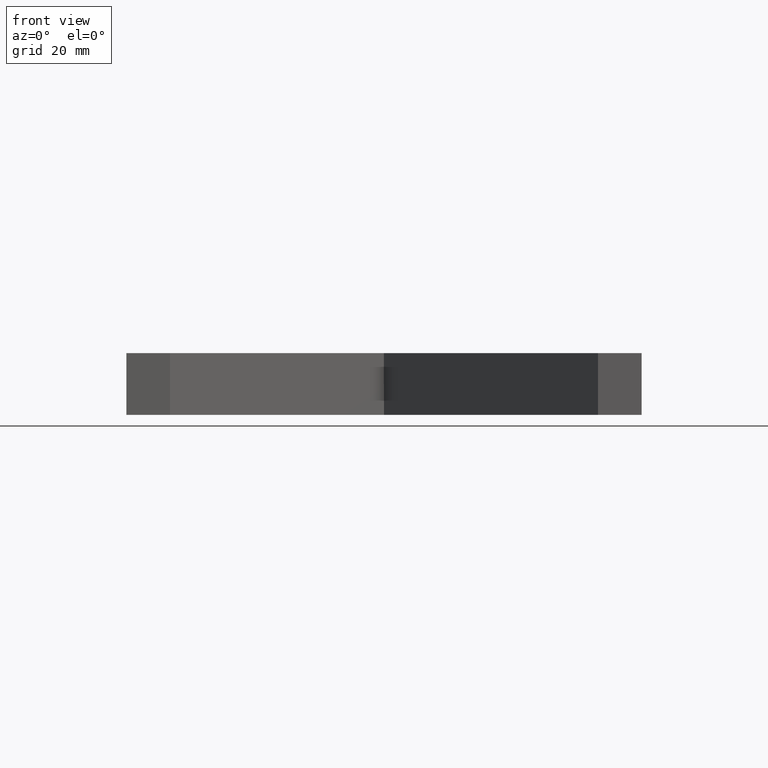
[diagram: clean part render]
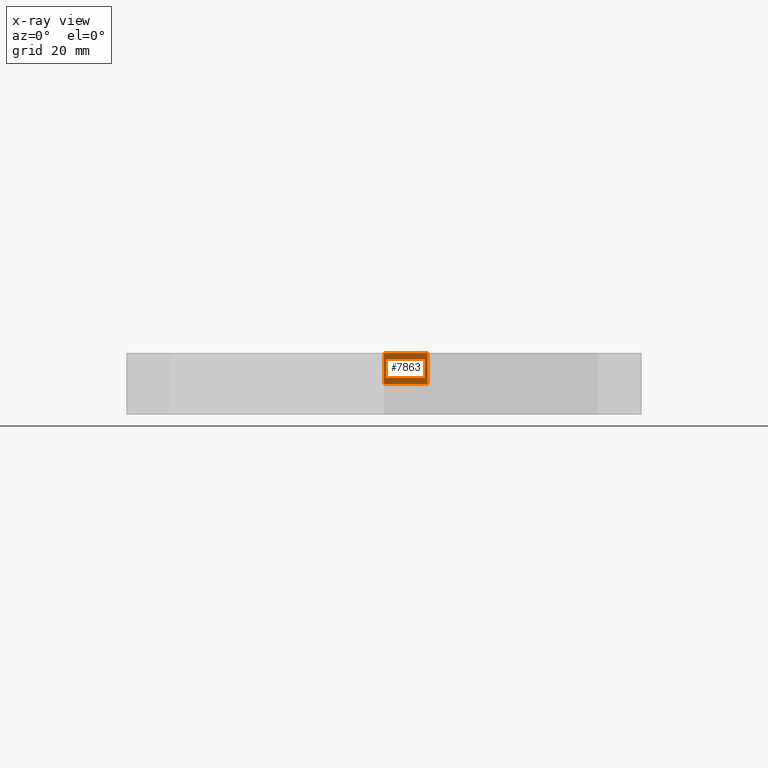
[diagram: x-ray — body ghosted, one internal face saturated and labeled with its STEP entity id]
A machine part, front view, then the same camera in x-ray: the body is ghosted and one INTERNAL B-rep face — a face not visible from any outside direction — is saturated and labeled: STEP entity #7863.
In plain terms, the highlighted planar face has unit normal (-0.7071, -0.7071, 0).
Its self-contained STEP definition (entity closure, byte-faithful):
#436 = DIRECTION ( 'NONE',  ( -0.000000000000000000, -0.000000000000000000, 1.000000000000000000 ) ) ;
#466 = CARTESIAN_POINT ( 'NONE',  ( 8.449926035179235129, -0.03535533905932477378, 12.00000000000000000 ) ) ;
#772 = ORIENTED_EDGE ( 'NONE', *, *, #8588, .F. ) ;
#1603 = ORIENTED_EDGE ( 'NONE', *, *, #2130, .F. ) ;
#1940 = VERTEX_POINT ( 'NONE', #13445 ) ;
#2130 = EDGE_CURVE ( 'NONE', #4304, #13062, #8506, .T. ) ;
#3130 = LINE ( 'NONE', #466, #10000 ) ;
#4139 = EDGE_LOOP ( 'NONE', ( #4996, #772, #1603, #8434 ) ) ;
#4304 = VERTEX_POINT ( 'NONE', #8628 ) ;
#4766 = VECTOR ( 'NONE', #11061, 1000.000000000000000 ) ;
#4996 = ORIENTED_EDGE ( 'NONE', *, *, #14210, .T. ) ;
#5118 = LINE ( 'NONE', #13274, #4766 ) ;
#5256 = CARTESIAN_POINT ( 'NONE',  ( -0.03535533905933258003, 8.449926035179242234, 12.00000000000000000 ) ) ;
#5932 = VECTOR ( 'NONE', #13904, 1000.000000000000114 ) ;
#6055 = VERTEX_POINT ( 'NONE', #5256 ) ;
#6208 = EDGE_CURVE ( 'NONE', #4304, #6055, #5118, .T. ) ;
#6812 = CARTESIAN_POINT ( 'NONE',  ( 8.449926035179235129, -0.03535533905932477378, 6.000000000000000000 ) ) ;
#7165 = CARTESIAN_POINT ( 'NONE',  ( 8.449926035179235129, -0.03535533905932477378, 6.000000000000000000 ) ) ;
#7863 = ADVANCED_FACE ( 'NONE', ( #12301 ), #11931, .F. ) ;
#7959 = DIRECTION ( 'NONE',  ( 0.7071067811865474617, -0.7071067811865474617, 0.000000000000000000 ) ) ;
#8434 = ORIENTED_EDGE ( 'NONE', *, *, #6208, .T. ) ;
#8439 = DIRECTION ( 'NONE',  ( 0.7071067811865474617, -0.7071067811865474617, -0.000000000000000000 ) ) ;
#8506 = LINE ( 'NONE', #10406, #5932 ) ;
#8588 = EDGE_CURVE ( 'NONE', #13062, #1940, #9734, .T. ) ;
#8628 = CARTESIAN_POINT ( 'NONE',  ( -0.03535533905933258003, 8.449926035179242234, 6.000000000000000000 ) ) ;
#9030 = VECTOR ( 'NONE', #436, 1000.000000000000000 ) ;
#9087 = CARTESIAN_POINT ( 'NONE',  ( 8.449926035179235129, -0.03535533905932477378, 6.000000000000000000 ) ) ;
#9734 = LINE ( 'NONE', #7165, #9030 ) ;
#10000 = VECTOR ( 'NONE', #8439, 1000.000000000000114 ) ;
#10406 = CARTESIAN_POINT ( 'NONE',  ( 8.449926035179235129, -0.03535533905932477378, 6.000000000000000000 ) ) ;
#11061 = DIRECTION ( 'NONE',  ( -0.000000000000000000, -0.000000000000000000, 1.000000000000000000 ) ) ;
#11433 = AXIS2_PLACEMENT_3D ( 'NONE', #9087, #13320, #7959 ) ;
#11931 = PLANE ( 'NONE',  #11433 ) ;
#12301 = FACE_OUTER_BOUND ( 'NONE', #4139, .T. ) ;
#13062 = VERTEX_POINT ( 'NONE', #6812 ) ;
#13274 = CARTESIAN_POINT ( 'NONE',  ( -0.03535533905933258003, 8.449926035179242234, 6.000000000000000000 ) ) ;
#13320 = DIRECTION ( 'NONE',  ( -0.7071067811865475727, -0.7071067811865475727, 0.000000000000000000 ) ) ;
#13445 = CARTESIAN_POINT ( 'NONE',  ( 8.449926035179235129, -0.03535533905932477378, 12.00000000000000000 ) ) ;
#13904 = DIRECTION ( 'NONE',  ( 0.7071067811865474617, -0.7071067811865474617, -0.000000000000000000 ) ) ;
#14210 = EDGE_CURVE ( 'NONE', #6055, #1940, #3130, .T. ) ;